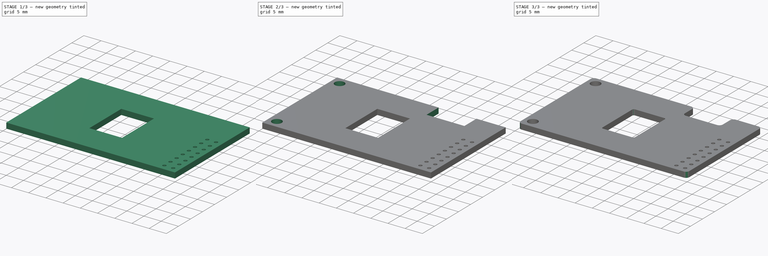
[diagram: build sequence overview — one tinted view per stage of 3, left to right]
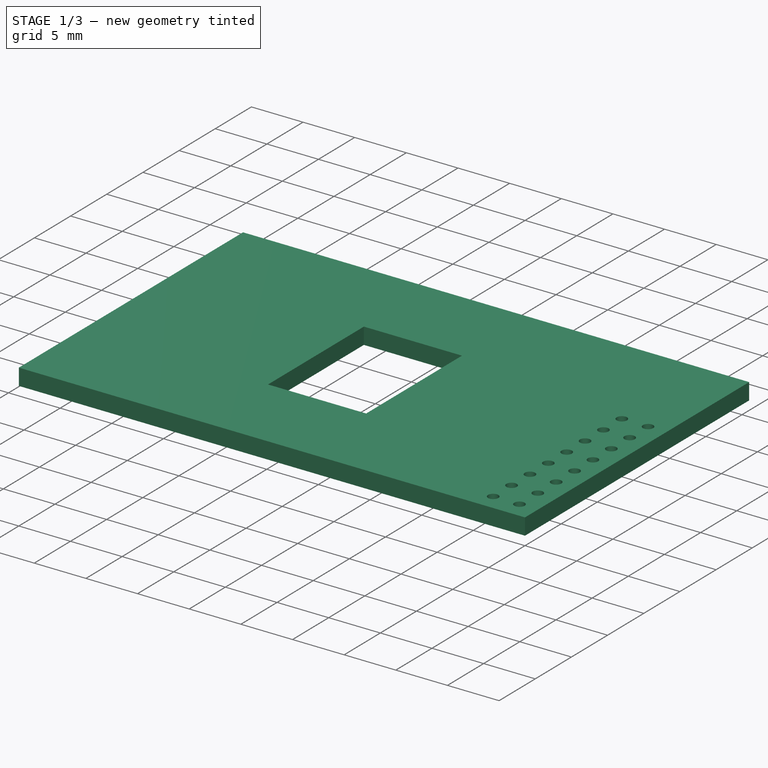
[diagram: stage 1 of 3 — iso view after this stage's code; geometry added in this stage tinted green]
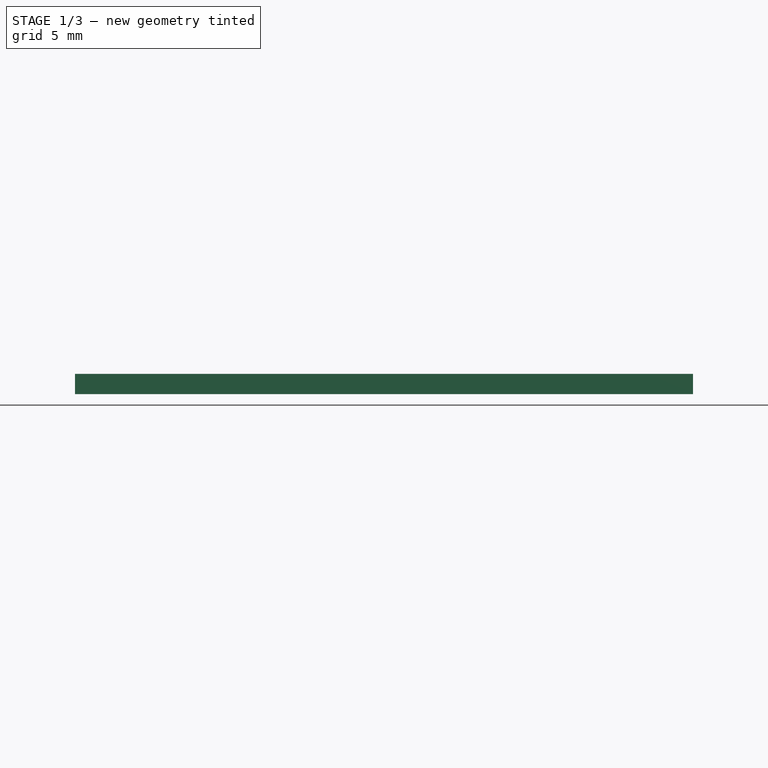
[diagram: stage 1 of 3 — front view after this stage's code; geometry added in this stage tinted green]
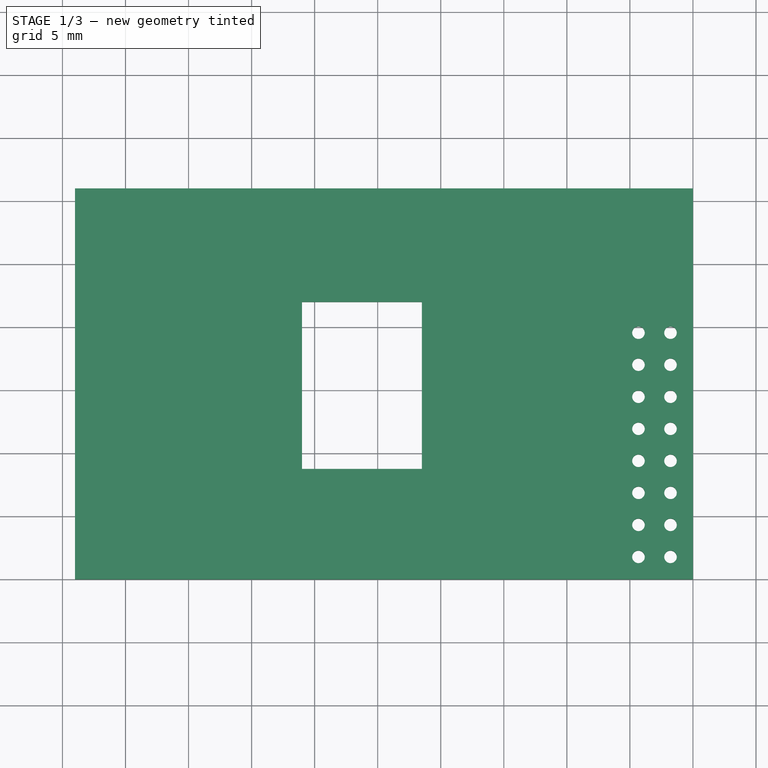
[diagram: stage 1 of 3 — top view after this stage's code; geometry added in this stage tinted green]
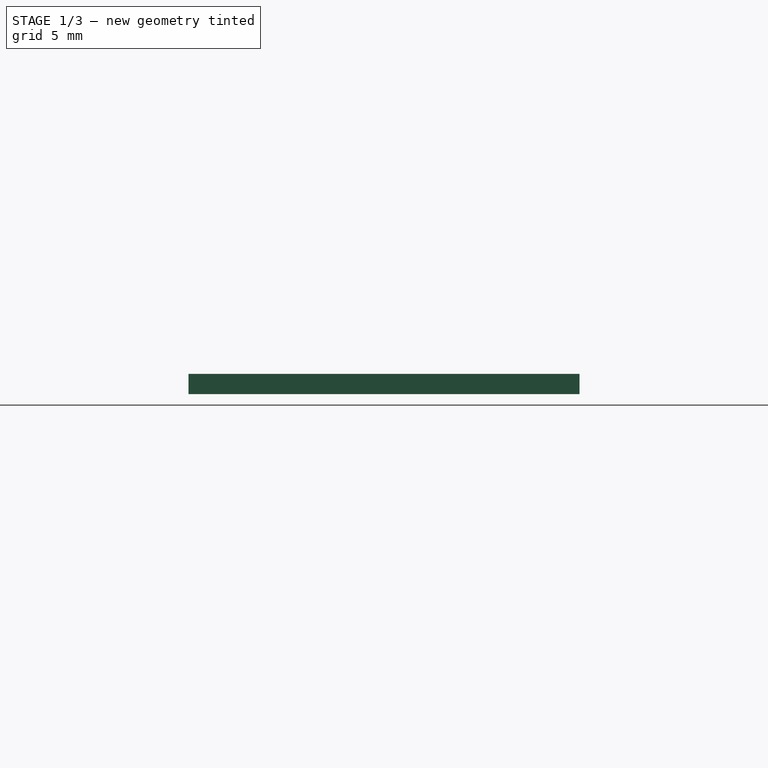
[diagram: stage 1 of 3 — right view after this stage's code; geometry added in this stage tinted green]
FCSTD DOCUMENT  (FreeCAD 0.18.4R)
Label: pcb
License: All rights reserved
LicenseURL: http://en.wikipedia.org/wiki/All_rights_reserved
objects: Sketcher::SketchObject×5, PartDesign::Fillet×3, PartDesign::Hole×2, PartDesign::Pad×1, PartDesign::LinearPattern×1, PartDesign::Pocket×1, PartDesign::Body×1
note: 18 computed .brp shape members not serialized (recipe doc carries the construction recipe); baked Part::Feature solids carry a one-line shape summary decoded from their .brp

FEATURE [Sketcher::SketchObject] Sketch
  MapMode = 5
  Support = -> [XY_Plane]
  sketch-geometry (31):
    g0: LineSegment StartX=0 StartY=0 StartZ=0 EndX=0 EndY=31 EndZ=0
    g1: LineSegment StartX=0 StartY=31 StartZ=0 EndX=-49 EndY=31 EndZ=0
    g2: LineSegment StartX=-49 StartY=31 StartZ=0 EndX=-49 EndY=0 EndZ=0
    g3: LineSegment StartX=-49 StartY=0 StartZ=0 EndX=-31 EndY=0 EndZ=0
    g4: LineSegment StartX=-31 StartY=8.75 StartZ=0 EndX=-31 EndY=22 EndZ=0
    g5: LineSegment StartX=-31 StartY=22 StartZ=0 EndX=-21.5 EndY=22 EndZ=0
    g6: LineSegment StartX=-21.5 StartY=22 StartZ=0 EndX=-21.5 EndY=8.75 EndZ=0
    g7: LineSegment StartX=-21.5 StartY=0 StartZ=0 EndX=0 EndY=0 EndZ=0
    g8: Circle CenterX=-1.78 CenterY=1.78 CenterZ=0 NormalX=0 NormalY=0 NormalZ=1 AngleXU=0 Radius=0.5
    g9: Circle CenterX=-4.32 CenterY=1.78 CenterZ=0 NormalX=0 NormalY=0 NormalZ=1 AngleXU=0 Radius=0.5
    g10: Circle [constr] CenterX=-1.78 CenterY=4.32 CenterZ=0 NormalX=0 NormalY=0 NormalZ=1 AngleXU=0 Radius=0.5
    g11: Circle [constr] CenterX=-4.32 CenterY=4.32 CenterZ=0 NormalX=0 NormalY=0 NormalZ=1 AngleXU=0 Radius=0.5
    g12: Circle [constr] CenterX=-1.78 CenterY=6.86 CenterZ=0 NormalX=0 NormalY=0 NormalZ=1 AngleXU=0 Radius=0.5
    g13: Circle [constr] CenterX=-4.32 CenterY=6.86 CenterZ=0 NormalX=0 NormalY=0 NormalZ=1 AngleXU=0 Radius=0.5
    g14: Circle [constr] CenterX=-4.32 CenterY=9.4 CenterZ=0 NormalX=0 NormalY=0 NormalZ=1 AngleXU=0 Radius=0.5
    g15: Circle [constr] CenterX=-1.78 CenterY=9.4 CenterZ=0 NormalX=0 NormalY=0 NormalZ=1 AngleXU=0 Radius=0.5
    g16: Circle [constr] CenterX=-4.32 CenterY=11.94 CenterZ=0 NormalX=0 NormalY=0 NormalZ=1 AngleXU=0 Radius=0.5
    g17: Circle [constr] CenterX=-1.78 CenterY=11.94 CenterZ=0 NormalX=0 NormalY=0 NormalZ=1 AngleXU=0 Radius=0.5
    g18: Circle [constr] CenterX=-1.78 CenterY=14.48 CenterZ=0 NormalX=0 NormalY=0 NormalZ=1 AngleXU=0 Radius=0.5
    g19: Circle [constr] CenterX=-4.32 CenterY=14.48 CenterZ=0 NormalX=0 NormalY=0 NormalZ=1 AngleXU=0 Radius=0.5
    g20: Circle [constr] CenterX=-1.78 CenterY=17.02 CenterZ=0 NormalX=0 NormalY=0 NormalZ=1 AngleXU=0 Radius=0.5
    g21: Circle [constr] CenterX=-4.32 CenterY=17.02 CenterZ=0 NormalX=0 NormalY=0 NormalZ=1 AngleXU=0 Radius=0.5
    g22: Circle [constr] CenterX=-4.32 CenterY=19.56 CenterZ=0 NormalX=0 NormalY=0 NormalZ=1 AngleXU=0 Radius=0.5
    g23: Circle [constr] CenterX=-1.78 CenterY=19.56 CenterZ=0 NormalX=0 NormalY=0 NormalZ=1 AngleXU=0 Radius=0.5
    g24: Circle [constr] CenterX=-1.78 CenterY=1.78 CenterZ=0 NormalX=0 NormalY=0 NormalZ=1 AngleXU=0 Radius=1.78
    g25: Circle [constr] CenterX=-4.32 CenterY=1.78 CenterZ=0 NormalX=0 NormalY=0 NormalZ=1 AngleXU=0 Radius=1.78
    g26: GeomPoint X=-6.1 Y=1.78 Z=0
    g27: GeomPoint X=-6.1 Y=0 Z=0
    g28: LineSegment StartX=-31 StartY=0 StartZ=0 EndX=-21.5 EndY=0 EndZ=0
    g29: LineSegment StartX=-31 StartY=8.75 StartZ=0 EndX=-21.5 EndY=8.75 EndZ=0
    g30: Circle CenterX=-45.5 CenterY=27.5 CenterZ=0 NormalX=0 NormalY=0 NormalZ=1 AngleXU=0 Radius=1.45
  constraints (88):
    c: Coincident(g-1,g0)
    c: Vertical(g0)
    c: Coincident(g0,g1)
    c: Horizontal(g1)
    c: Coincident(g1,g2)
    c: Vertical(g2)
    c: Coincident(g2,g3)
    c: PointOnObject(g3,g-1)
    c: Horizontal(g3)
    c: Vertical(g4)
    c: Coincident(g4,g5)
    c: Horizontal(g5)
    c: Coincident(g5,g6)
    c: PointOnObject(g7,g-1)
    c: Vertical(g6)
    c: Coincident(g7,g0)
    c: Distance(g7) = 21.5
    c: Equal(g9,g8)
    c: Equal(g8,g10)
    c: Equal(g10,g11)
    c: Equal(g11,g12)
    c: Equal(g12,g13)
    c: Equal(g13,g14)
    c: Equal(g14,g15)
    c: Equal(g17,g16)
    c: Equal(g16,g19)
    c: Equal(g19,g18)
    c: Equal(g18,g20)
    c: Equal(g20,g21)
    c: Equal(g21,g22)
    c: Equal(g22,g23)
    c: Equal(g23,g14)
    c: Vertical(g13,g11)
    c: Vertical(g11,g9)
    c: Vertical(g13,g14)
    c: Vertical(g14,g16)
    c: Vertical(g16,g19)
    c: Vertical(g19,g21)
    c: Vertical(g21,g22)
    c: Vertical(g20,g23)
    c: Vertical(g23,g18)
    c: Vertical(g18,g17)
    c: Vertical(g17,g15)
    c: Vertical(g15,g12)
    c: Vertical(g12,g10)
    c: Vertical(g10,g8)
    c: Horizontal(g22,g23)
    c: Horizontal(g21,g20)
    c: Horizontal(g19,g18)
    c: Horizontal(g16,g17)
    c: Horizontal(g15,g14)
    c: Horizontal(g13,g12)
    c: Horizontal(g10,g11)
    c: Horizontal(g9,g8)
    c: Distance(g8,g9) = 2.54
    c: Distance(g10,g8) = 2.54
    c: Distance(g12,g10) = 2.54
    c: Distance(g15,g12) = 2.54
    c: Distance(g17,g15) = 2.54
    c: Distance(g18,g17) = 2.54
    c: Distance(g20,g18) = 2.54
    c: Distance(g23,g20) = 2.54
    c: Coincident(g24,g8)
    c: Radius(g8) = 0.5
    c: Tangent(g24,g7)
    c: Tangent(g24,g0)
    c: Coincident(g25,g9)
    c: Equal(g25,g24)
    c: Distance(g0) = 31
    c: Distance(g1) = 49
    c: DistanceX(g-2,g3) = -31
    c: DistanceY(g-1,g4) = 22
    c: PointOnObject(g26,g25)
    c: PointOnObject(g27,g7)
    c: Vertical(g27,g26)
    c: Distance(g27,g0) = 6.1
    c: Horizontal(g26,g9)
    c: Coincident(g28,g3)
    c: Coincident(g28,g7)
    c: Horizontal(g29)
    c: Distance(g4,g29) = 13.25
    c: Coincident(g4,g29)
    c: Coincident(g6,g29)
    c: PointOnObject(g3,g4)
    c: PointOnObject(g7,g6)
    c: Radius(g30) = 1.45
    c: Distance(g30,g1) = 3.5
    c: Distance(g30,g2) = 3.5
FEATURE [Sketcher::SketchObject] Sketch001
  ExternalGeometry = -> [Sketch]
  MapMode = 5
  Support = -> [XY_Plane]
  sketch-geometry (8):
    g0: LineSegment StartX=0 StartY=0 StartZ=0 EndX=0 EndY=31 EndZ=0
    g1: LineSegment StartX=0 StartY=31 StartZ=0 EndX=-49 EndY=31 EndZ=0
    g2: LineSegment StartX=-49 StartY=31 StartZ=0 EndX=-49 EndY=0 EndZ=0
    g3: LineSegment StartX=-49 StartY=0 StartZ=0 EndX=0 EndY=0 EndZ=0
    g4: LineSegment StartX=-21.5 StartY=8.75 StartZ=0 EndX=-21.5 EndY=22 EndZ=0
    g5: LineSegment StartX=-21.5 StartY=22 StartZ=0 EndX=-31 EndY=22 EndZ=0
    g6: LineSegment StartX=-31 StartY=22 StartZ=0 EndX=-31 EndY=8.75 EndZ=0
    g7: LineSegment StartX=-31 StartY=8.75 StartZ=0 EndX=-21.5 EndY=8.75 EndZ=0
  constraints (16):
    c: Coincident(g-1,g0)
    c: Coincident(g0,g-5)
    c: Coincident(g0,g1)
    c: Coincident(g1,g-4)
    c: Coincident(g1,g2)
    c: Coincident(g2,g-4)
    c: Coincident(g2,g3)
    c: Coincident(g3,g0)
    c: Coincident(g-7,g4)
    c: Coincident(g4,g-6)
    c: Coincident(g4,g5)
    c: Coincident(g5,g-6)
    c: Coincident(g5,g6)
    c: Coincident(g6,g-7)
    c: Coincident(g6,g7)
    c: Coincident(g7,g4)
FEATURE [PartDesign::Pad] Pad
  Length = 1.6
  Length2 = 100
  Profile = -> Sketch001
  Type = 0
FEATURE [Sketcher::SketchObject] Sketch002
  ExternalGeometry = -> [Sketch]
  MapMode = 5
  Placement = pos=(0,0,1.6) rot=(0,0,1;0rad)
  Support = -> [Pad]
  sketch-geometry (2):
    g0: Circle CenterX=-1.78 CenterY=1.78 CenterZ=0 NormalX=0 NormalY=0 NormalZ=1 AngleXU=0 Radius=0.5
    g1: Circle CenterX=-4.32 CenterY=1.78 CenterZ=0 NormalX=0 NormalY=0 NormalZ=1 AngleXU=0 Radius=0.5
  constraints (4):
    c: Coincident(g0,g-4)
    c: Coincident(g1,g-3)
    c: Equal(g1,g0)
    c: Radius(g1) = 0.5
FEATURE [PartDesign::Hole] Hole
  BaseFeature = -> Pad
  Depth = 25
  DepthType = 0
  Diameter = 1
  DrillPoint = 1
  DrillPointAngle = 118
  HoleCutCountersinkAngle = 90
  HoleCutDepth = 0
  HoleCutDiameter = 0
  HoleCutType = 0
  ModelActualThread = false
  Profile = -> Sketch002
  Tapered = false
  TaperedAngle = 90
  ThreadAngle = 0
  ThreadClass = 0
  ThreadCutOffInner = 0
  ThreadCutOffOuter = 0
  ThreadDirection = 0
  ThreadFit = 0
  ThreadPitch = 0
  ThreadSize = 0
  ThreadType = 0
  Threaded = false
FEATURE [PartDesign::LinearPattern] LinearPattern
  BaseFeature = -> Hole
  Direction = -> Y_Axis
  Length = 17.78
  Occurrences = 8
  Originals = -> [Hole]
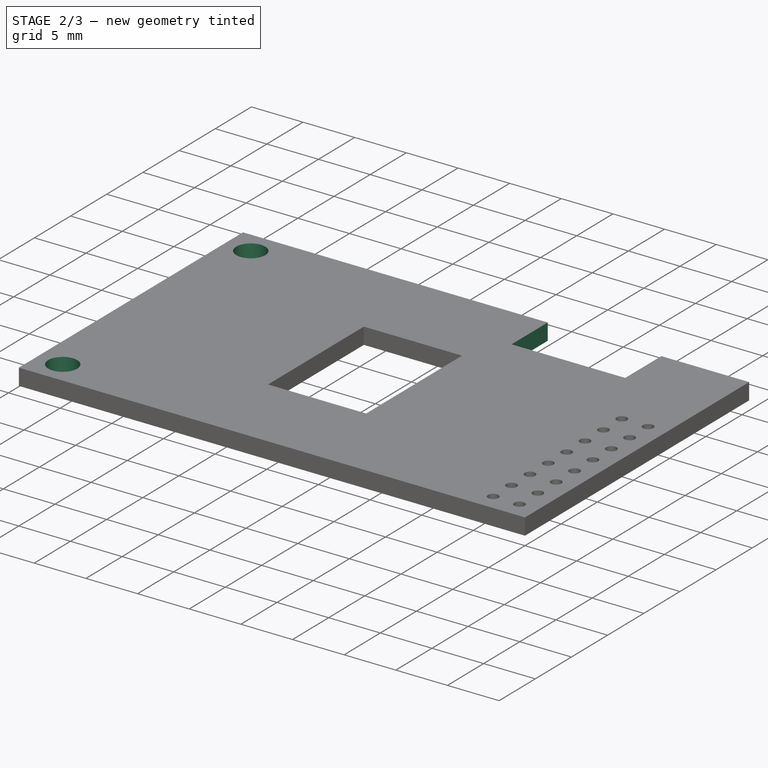
[diagram: stage 2 of 3 — iso view after this stage's code; geometry added in this stage tinted green]
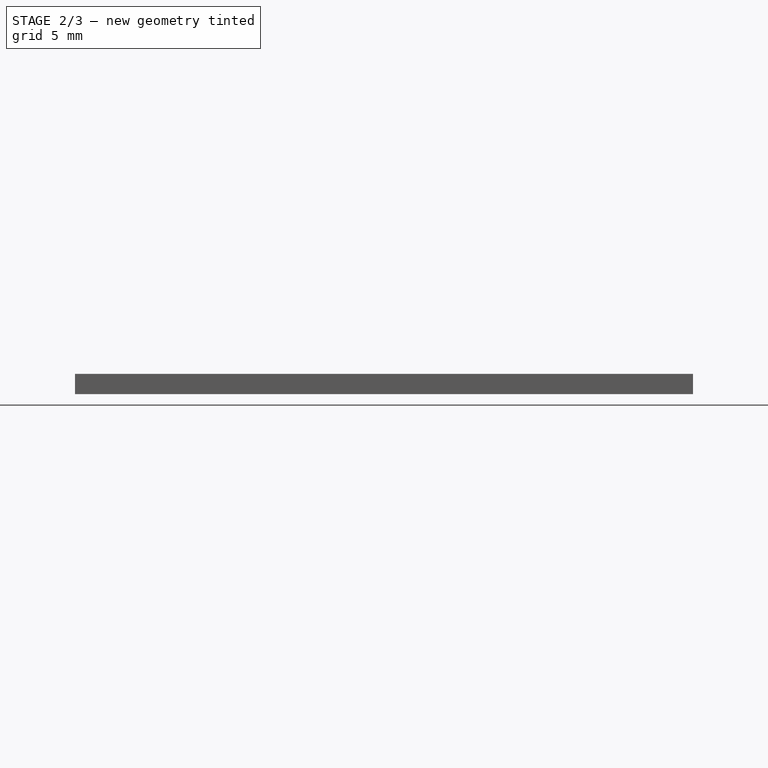
[diagram: stage 2 of 3 — front view after this stage's code; geometry added in this stage tinted green]
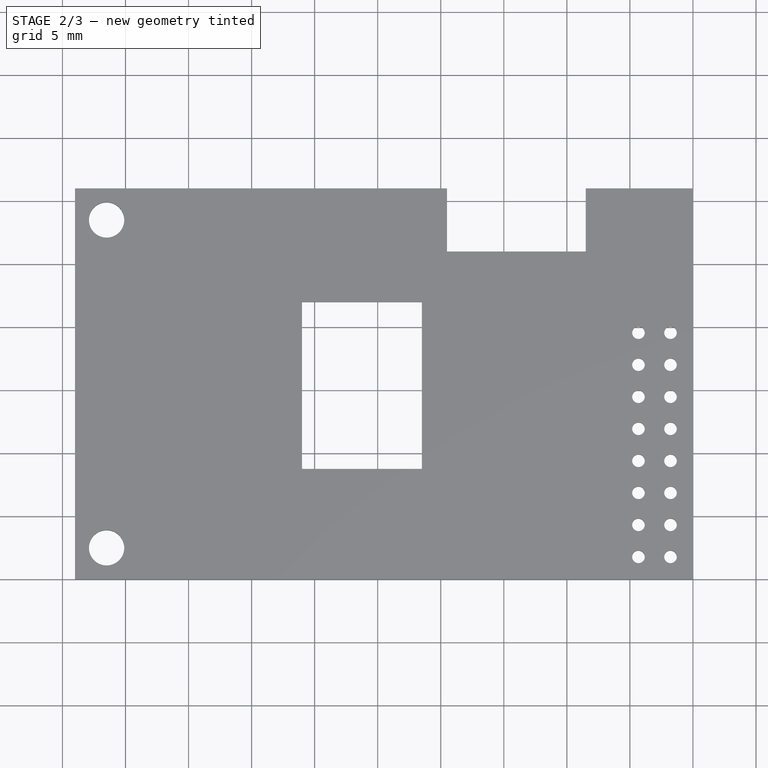
[diagram: stage 2 of 3 — top view after this stage's code; geometry added in this stage tinted green]
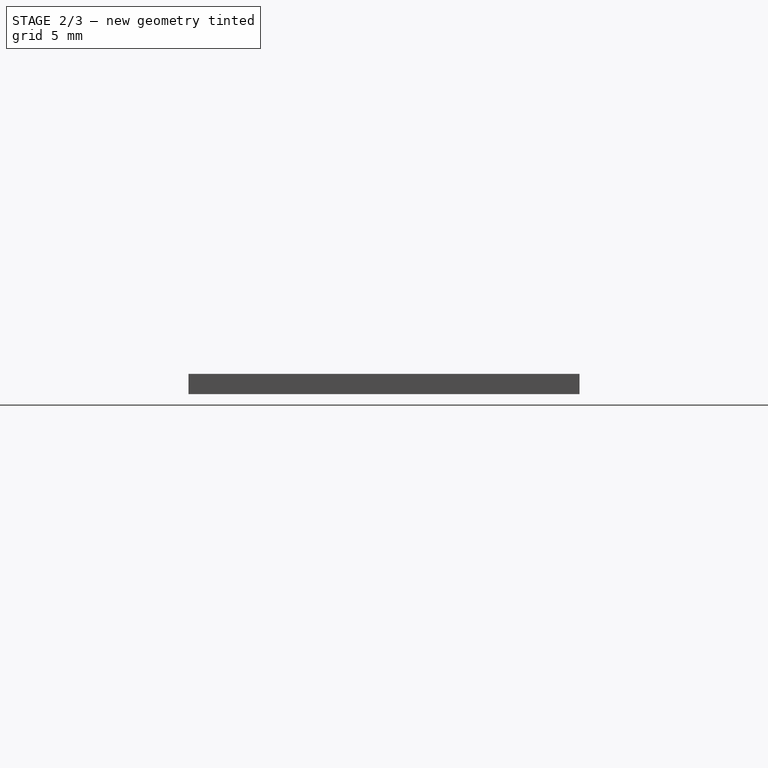
[diagram: stage 2 of 3 — right view after this stage's code; geometry added in this stage tinted green]
FEATURE [Sketcher::SketchObject] Sketch003
  ExternalGeometry = -> [LinearPattern]
  MapMode = 5
  Placement = pos=(0,0,1.6) rot=(0,0,1;0rad)
  Support = -> [LinearPattern]
  sketch-geometry (4):
    g0: LineSegment StartX=-19.5 StartY=31 StartZ=0 EndX=-8.5 EndY=31 EndZ=0
    g1: LineSegment StartX=-8.5 StartY=31 StartZ=0 EndX=-8.5 EndY=26 EndZ=0
    g2: LineSegment StartX=-8.5 StartY=26 StartZ=0 EndX=-19.5 EndY=26 EndZ=0
    g3: LineSegment StartX=-19.5 StartY=26 StartZ=0 EndX=-19.5 EndY=31 EndZ=0
  constraints (12):
    c: Coincident(g0,g1)
    c: Coincident(g1,g2)
    c: Coincident(g2,g3)
    c: Coincident(g3,g0)
    c: Horizontal(g0)
    c: Horizontal(g2)
    c: Vertical(g1)
    c: Vertical(g3)
    c: PointOnObject(g0,g-3)
    c: Distance(g0,g-4) = 8.5
    c: Distance(g0) = 11
    c: Distance(g3) = 5
FEATURE [PartDesign::Pocket] Pocket
  BaseFeature = -> LinearPattern
  Length = 5
  Length2 = 100
  Profile = -> Sketch003
  Type = 1
FEATURE [Sketcher::SketchObject] Sketch004
  ExternalGeometry = -> [Pocket]
  MapMode = 5
  Placement = pos=(0,0,1.6) rot=(0,0,1;0rad)
  Support = -> [Pocket]
  sketch-geometry (2):
    g0: Circle CenterX=-46.5 CenterY=28.5 CenterZ=0 NormalX=0 NormalY=0 NormalZ=1 AngleXU=0 Radius=1.4
    g1: Circle CenterX=-46.5 CenterY=2.5 CenterZ=0 NormalX=0 NormalY=0 NormalZ=1 AngleXU=0 Radius=1.4
  constraints (6):
    c: Vertical(g0,g1)
    c: DistanceX(g-2,g0) = -46.5
    c: DistanceY(g-1,g0) = 28.5
    c: Equal(g0,g1)
    c: Radius(g0) = 1.4
    c: Distance(g1,g0) = 26
FEATURE [PartDesign::Hole] Hole001
  BaseFeature = -> Pocket
  Depth = 25
  DepthType = 0
  Diameter = 2.8
  DrillPoint = 1
  DrillPointAngle = 118
  HoleCutCountersinkAngle = 90
  HoleCutDepth = 0
  HoleCutDiameter = 0
  HoleCutType = 0
  ModelActualThread = false
  Profile = -> Sketch004
  Tapered = false
  TaperedAngle = 90
  ThreadAngle = 0
  ThreadClass = 0
  ThreadCutOffInner = 0
  ThreadCutOffOuter = 0
  ThreadDirection = 0
  ThreadFit = 0
  ThreadPitch = 0
  ThreadSize = 0
  ThreadType = 0
  Threaded = false
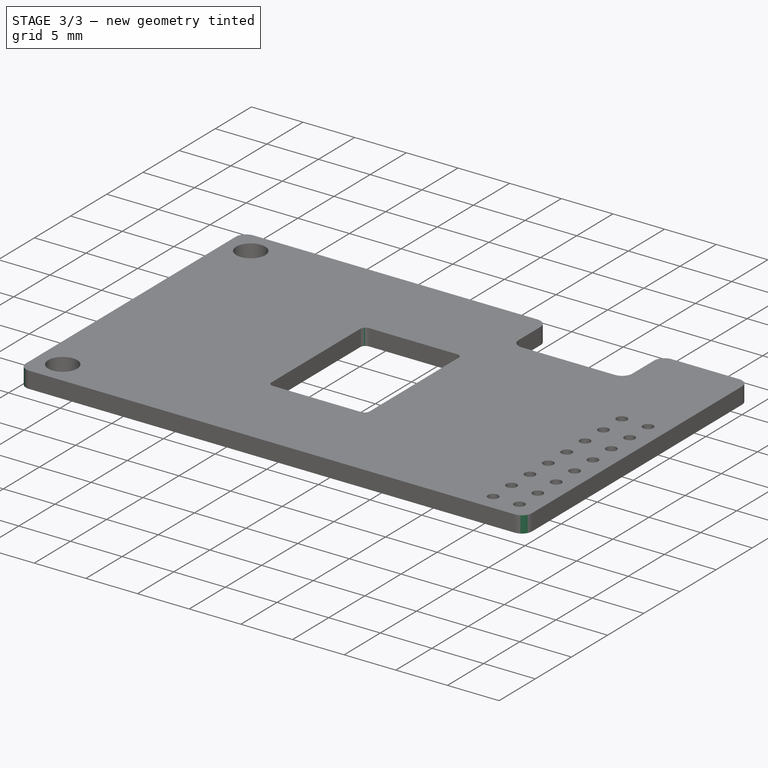
[diagram: stage 3 of 3 — iso view after this stage's code; geometry added in this stage tinted green]
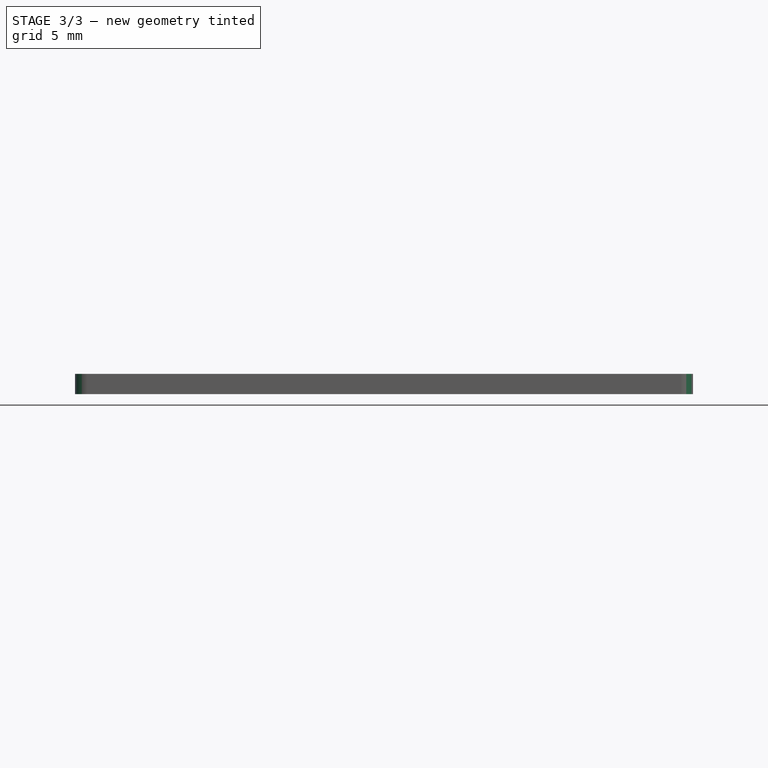
[diagram: stage 3 of 3 — front view after this stage's code; geometry added in this stage tinted green]
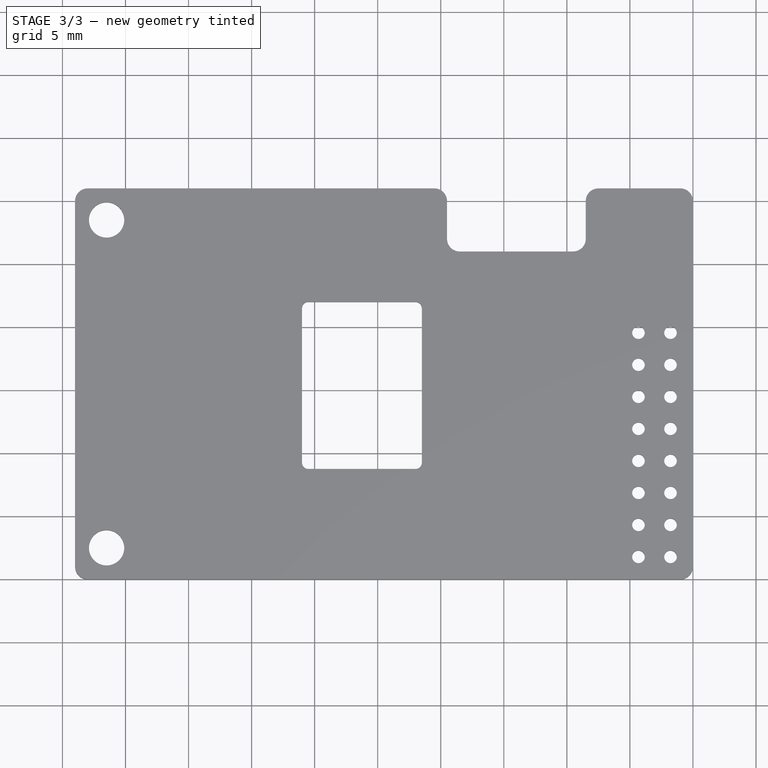
[diagram: stage 3 of 3 — top view after this stage's code; geometry added in this stage tinted green]
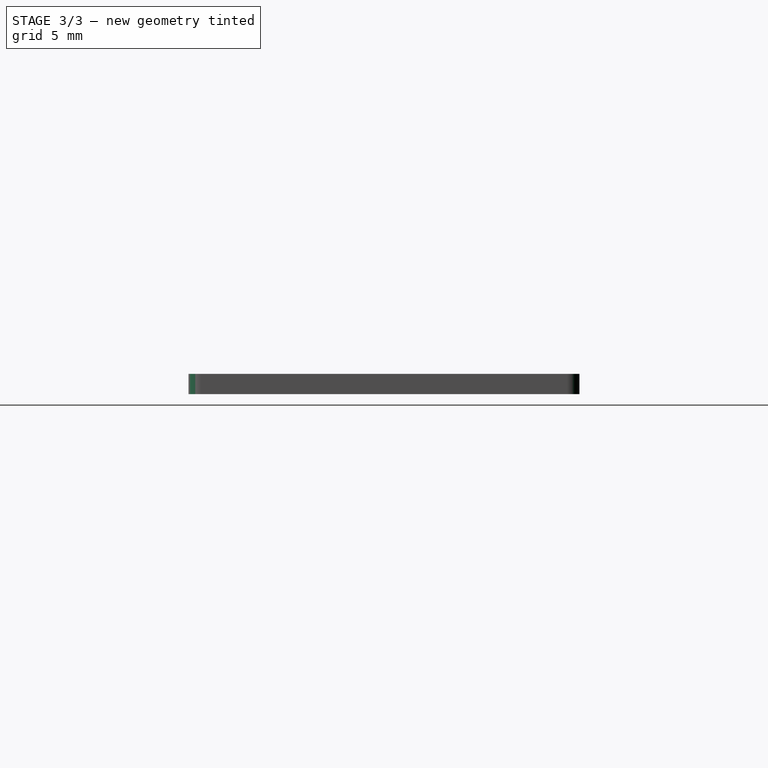
[diagram: stage 3 of 3 — right view after this stage's code; geometry added in this stage tinted green]
FEATURE [PartDesign::Fillet] Fillet
  Base = -> Hole001 [Edge66,Edge68,Edge67,Edge9,Edge2,Edge1]
  BaseFeature = -> Hole001
  Radius = 1
FEATURE [PartDesign::Fillet] Fillet001
  Base = -> Fillet [Edge106,Edge104,Edge103,Edge105]
  BaseFeature = -> Fillet
  Radius = 0.5
FEATURE [PartDesign::Fillet] Fillet002
  Base = -> Fillet001 [Edge62,Edge58]
  BaseFeature = -> Fillet001
  Radius = 1
FEATURE [PartDesign::Body] Body
  Group = -> [Sketch,Sketch001,Pad,Sketch002,Hole,LinearPattern,Sketch003,Pocket,Sketch004,Hole001,Fillet,Fillet001,Fillet002]
  Origin = -> Origin
  Tip = -> Fillet002
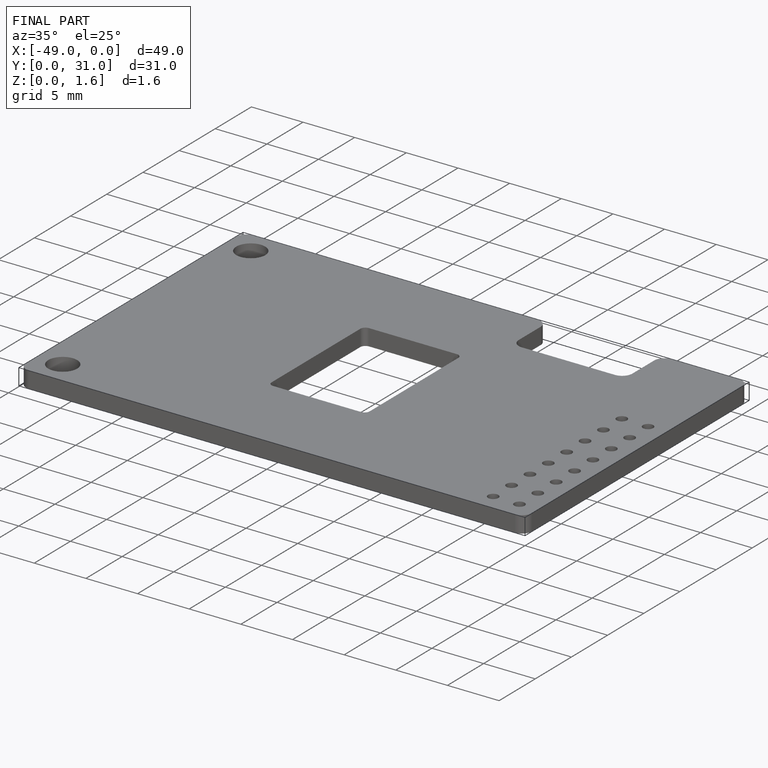
[diagram: finished part — iso view with bounding-box wireframe]
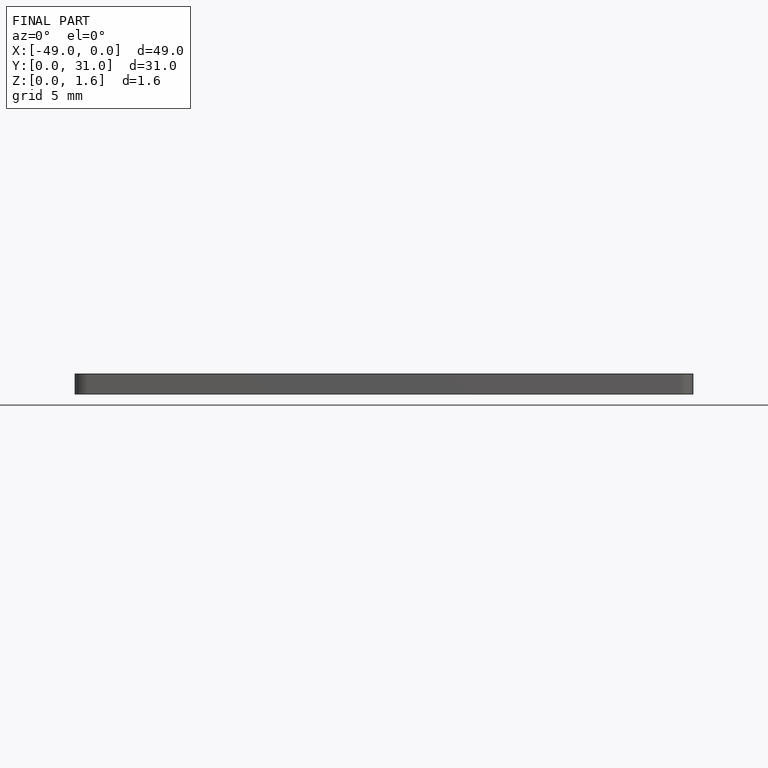
[diagram: finished part — front view with bounding-box wireframe]
